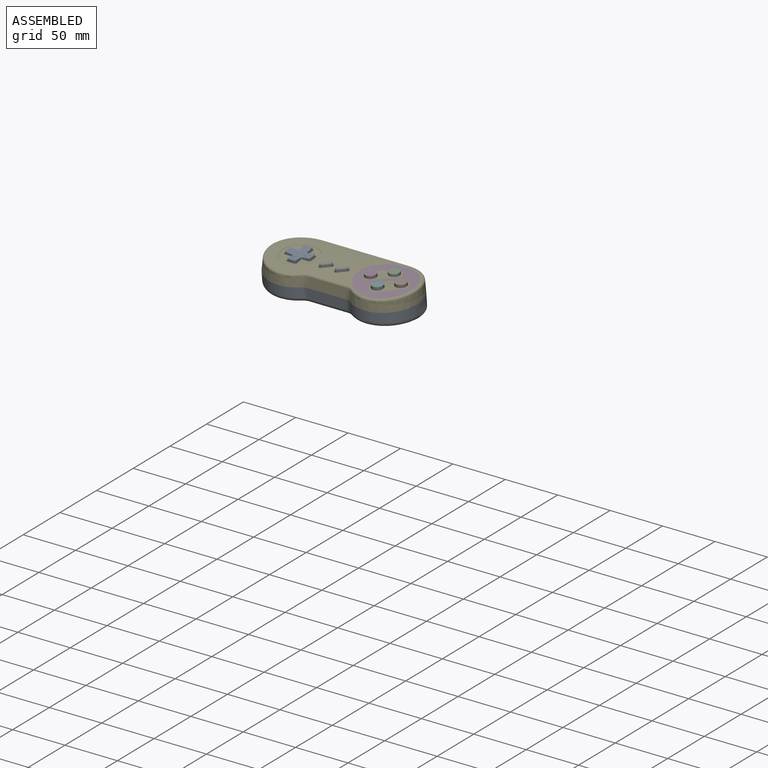
[diagram: assembled view]
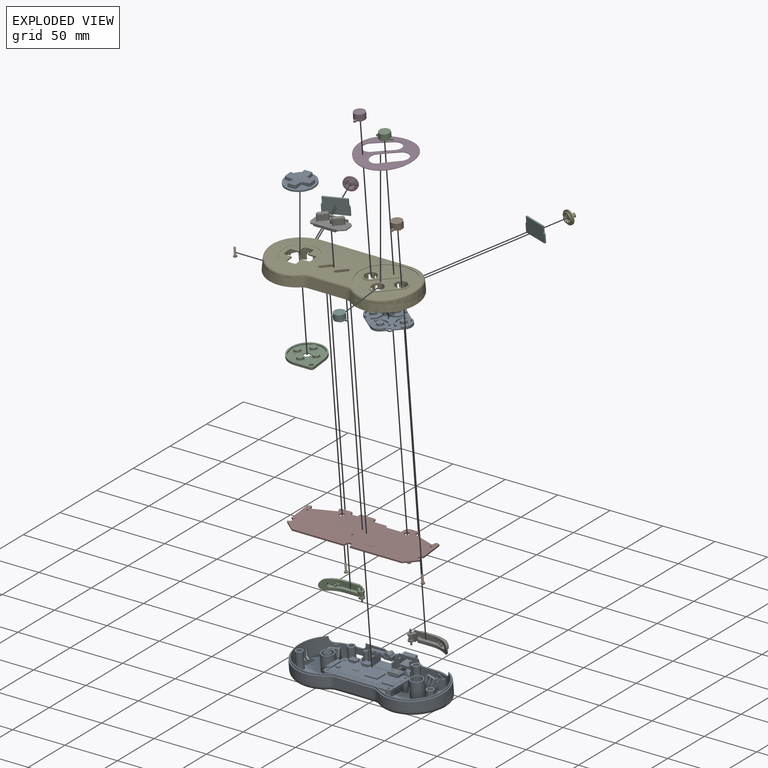
[diagram: exploded view]
GUIDED TOUR — MATED ASSEMBLY WITH SUBASSEMBLIES (Onshape document d4e5170b967958ae4bec7558, AutoMate assembly d4e5170b967958ae4bec7558_bfb75bdfd02195d627e89820_836d522591a3308e4b1309a6_default)

This assembly has 30 component occurrences arranged in 22 top-level units: 21 individual components plus 1 subassembly (S0). The tour has two levels: first the top level, where each subassembly is treated as one rigid unit; then each subassembly is toured internally in its own section (nesting deeper than one subassembly level is flattened into its subassembly's section).

Components are labeled P0..P29 across the whole record; subassembly units are labeled S0..S0. A mate is a constraint between two units; its type names the relative motion it leaves free:
  CYLINDRICAL — leaves both rotation about and translation along the listed axis free,
  FASTENED — locks the two components together rigidly (no relative motion),
  PARALLEL — keeps the two listed directions parallel,
  PLANAR — leaves sliding in the plane through the listed point (normal = the listed direction) and rotation about that normal free,
  SLIDER — leaves translation along the listed axis free.
Axis/direction vectors are unit vectors and 'through' points are millimeter coordinates, both in the assembly's world frame.

TOP-LEVEL MATES (between units; each subassembly's internal mates are listed in its own section)
  1. CYLINDRICAL "Cylindrical 7": P17 <-> P21, axis (0.000, 0.104, -0.995) through (1.51, -26.96, 27.78) mm
  2. CYLINDRICAL "Cylindrical 6": P24 <-> P17, axis (0.000, -0.104, 0.995) through (-101.99, -19.09, 29.61) mm
  3. CYLINDRICAL "Cylindrical 4": P13 <-> P17, axis (0.000, -0.104, 0.995) through (-101.99, -19.51, 33.59) mm
  4. FASTENED "Fastened 2": P12 <-> S0, direction (0.000, -0.104, 0.995) through (1.51, -26.23, 21.82) mm
  5. SLIDER "Slider 3": P10 <-> P17, axis (0.000, 0.104, -0.995) through (-77.17, -25.52, 33.18) mm
  6. PARALLEL "Parallel 2": P7 <-> P17, direction (0.000, 0.993, 0.122) through (-13.67, -29.84, 31.13) mm
  7. CYLINDRICAL "Cylindrical 10": P20 <-> P17, axis (0.000, 0.104, -0.995) through (-38.49, 6.01, 29.73) mm
  8. SLIDER "Slider 1": P23 <-> P17, axis (0.000, 0.104, -0.995) through (-5.49, -19.67, 34.91) mm
  9. PLANAR "Planar 2": P29 <-> P21, direction (0.309, -0.946, -0.099) through (-118.75, -5.45, 28.52) mm
  10. FASTENED "Fastened 3": P1 <-> S0, direction (0.000, -0.104, 0.995) through (-29.99, -0.37, 24.53) mm
  11. CYLINDRICAL "Cylindrical 2": P2 <-> P17, axis (0.000, 0.104, -0.995) through (-19.99, -8.21, 35.94) mm
  12. PLANAR "Planar 1": P19 <-> P21, direction (-0.309, -0.946, -0.099) through (-24.15, 1.31, 29.23) mm
  13. CYLINDRICAL "Cylindrical 9": P25 <-> P17, axis (0.309, -0.947, -0.090) through (-109.97, 4.37, 25.54) mm
  14. SLIDER "Slider 2": P16 <-> P17, axis (0.621, -0.779, -0.082) through (-31.58, -8.48, 35.96) mm
  15. PARALLEL "Parallel 1": P23 <-> P17, direction (-1.000, -0.002, 0.017) through (-6.48, -13.12, 33.09) mm
  16. CYLINDRICAL "Cylindrical 1": P7 <-> P17, axis (0.000, 0.104, -0.995) through (-19.99, -31.08, 33.51) mm
  17. FASTENED "Fastened 4": P26 <-> S0, direction (0.000, -0.104, 0.995) through (-91.99, -0.37, 24.53) mm
  18. CYLINDRICAL "Cylindrical 3": P4 <-> P17, axis (0.000, 0.104, -0.995) through (-34.49, -19.66, 34.82) mm
  19. CYLINDRICAL "Cylindrical 5": P22 <-> P17, axis (0.000, -0.104, 0.995) through (-5.49, -19.11, 29.61) mm
  20. PARALLEL "Parallel 4": P4 <-> P17, direction (-1.000, -0.002, 0.017) through (-35.48, -25.69, 31.76) mm
  21. FASTENED "Fastened 5": P14 <-> S0, direction (0.000, -0.104, 0.995) through (-123.49, -26.23, 21.82) mm
  22. FASTENED "Fastened 1": S0 <-> P17, direction (0.000, -0.104, 0.995) through (-79.07, -42.13, 21.16) mm
  23. CYLINDRICAL "Cylindrical 8": P6 <-> P17, axis (-0.309, -0.947, -0.090) through (-12.01, 4.37, 25.54) mm
  24. CYLINDRICAL "Cylindrical 11": P15 <-> P17, axis (0.000, -0.104, 0.995) through (-83.49, 6.01, 29.73) mm
  25. PARALLEL "Parallel 3": P2 <-> P17, direction (0.000, -0.996, -0.087) through (-26.31, -8.95, 33.43) mm

TOP-LEVEL ASSEMBLY ORDER
  1. P17 — the base component [order heuristic]
  2. P10 — core [order heuristic]
  3. P6 — core [order heuristic]
  4. P21 — core [order heuristic]
  5. P15 — core [order heuristic]
  6. P20 — core [order heuristic]
  7. P23 — core [order heuristic]
  8. P22 — core [order heuristic]
  9. P4 [order verified]
  10. P24 — core [order heuristic]
  11. P25 — core [order heuristic]
  12. P1 — core [order heuristic]
  13. P12 — core [order heuristic]
  14. P26 — core [order heuristic]
  15. P29 — core [order heuristic]
  16. P14 [order verified]
  17. P13 [order verified]
  18. P7 [order verified]
  19. P2 [order verified]
  20. P19 [order verified]
  21. P16 [order verified]
  22. S0 — core [order heuristic]
(P2, P7, P13, P14 verified with a relaxed clearance tolerance: the source model stores slight part interference there.)
Order-tag legend:
  [order verified] — this step's position reverses a verified removal order: the component was checked to insert without passing through the ones already placed.
  [order heuristic] — the first 15 components form the assembly's core: parts whose collision-free extraction could not be verified, listed in mate-graph order.

Of the 30 component occurrences, 2 carry the full construction recipe — the FeatureScript program that regenerates the part's solid from scratch; the rest are supplied as boundary geometry only. Each toured unit is shown spotlighted twice — assembled, then exploded with a leader line back to its socket (green = recipe-attached component, orange = geometry-only, blue = subassembly unit; the rest desaturated gray).
NOTE — document 3 of 3 of this assembly tour. The two overview renders and the header above are repeated from document 1; the component sections below continue where the previous document stopped.
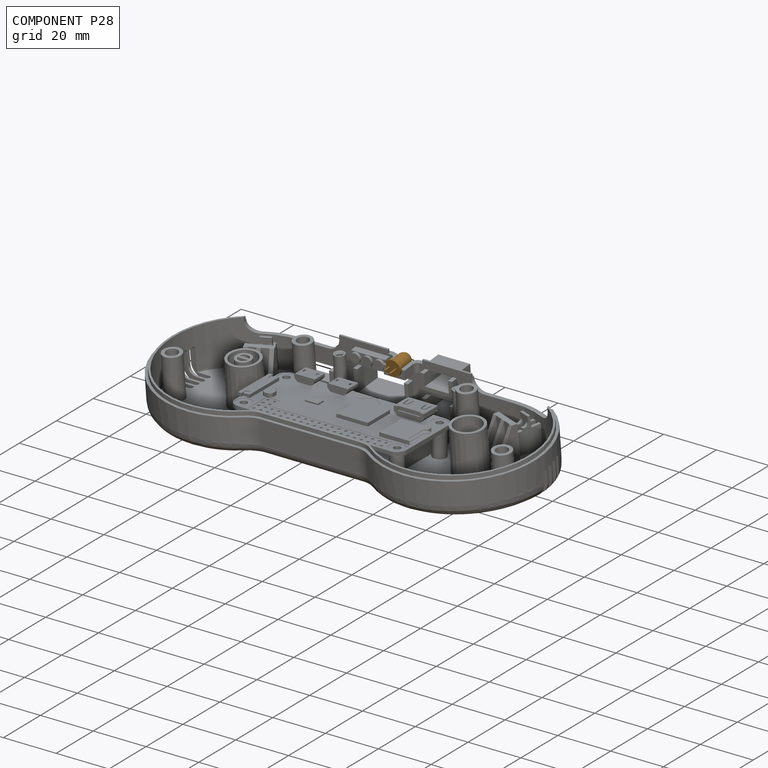
[diagram: component P28 — assembled]
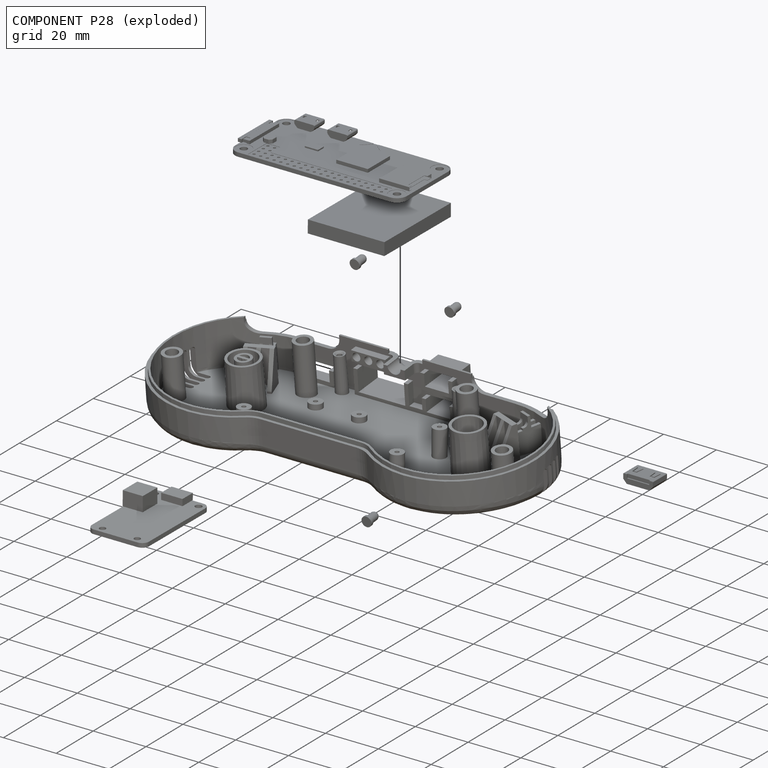
[diagram: component P28 — exploded]
COMPONENT P28 — geometry summary (no construction recipe available for this part):
  bounding box: 11.8 x 6.0 x 5.5 mm
  B-rep topology: 1 solid, 16 faces, 76 edges
  volume: 158 mm^3 (40% of its bounding box)
  symmetry: mirror-symmetric across its y mid-plane
Held by: FASTENED mate "Fastened 10" to P0; FASTENED mate "Fastened 10" to P0.
PROVENANCE & LICENSES
Assembly (occurrences, transforms, mates, per-part STEP geometry): AutoMate dataset, Zenodo record 7776208, CC0.
Construction recipes: CADFS (HuggingFace VladPyatov/CADFS, CC-BY-4.0, layered over the ABC dataset), FeatureScript reconstruction programs keyed by ABC model id.
Join: ABC meta listings map ABC model id -> Onshape documentId; within a shared document, parts are matched by geometric signature (bounding-box dims + volume at 0.1% relative tolerance, exact B-rep face/solid counts).
Verification: 2 of this assembly's 30 components carry a recipe attachment, and every attachment is mesh-verified: the CADFS STEP and the AutoMate member STEP were compared as meshes in their shared local frame (symmetric sampled-point-to-mesh distance); worst across the 2 attachments: below the mesh-comparison resolution (tessellation chordal tolerance ~0.0697 mm) on a 46 mm part.
Renders: orthographic iso camera (az 35 / el 25); the floor grid conveys scale (grid pitch printed in each image; no ruler). In the exploded view each component is displaced by its stored offset vector: the offsets alone carry the explosion direction (mate normal/axis signs are not orientation cues and do not encode it), and separation distances are assigned per mate-chain, not proportionally to assembly-order depth.
